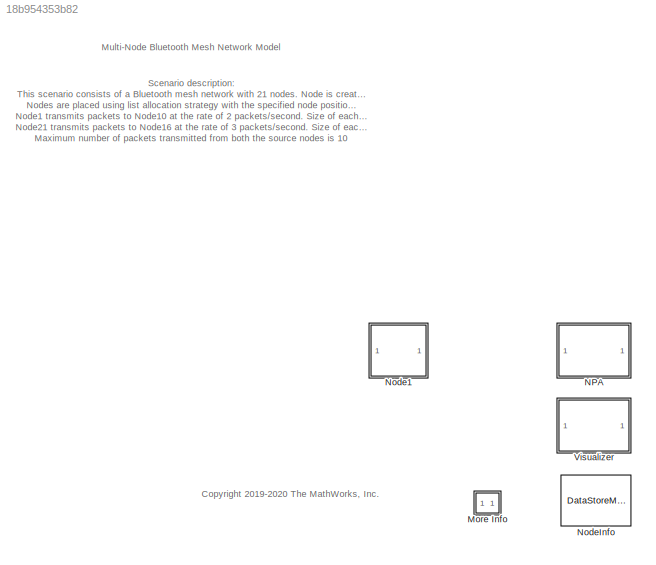
MODEL slx_18b954353b82
KIND model
CONFIG AbsTol = auto
CONFIG EnableMultiTasking = off
CONFIG FixedStep = auto
CONFIG InitFcn = load('bleMeshBusObjects.mat');\nload('bleMeshDESNodePositions.mat');\nModelName = bdroot;\nhelperBLEMeshAssignNodeIDs(ModelName);\nNumberOfNodes = numel(helperBLEMeshGetNodeNamesList(ModelName));\n% Statistics\nopcode = 0; % For creating the table\nhelperBLEMeshUpdateStatistics(opcode);\nmeshNetworkGraph = helperBLEMeshVisualizeNetwork();\nrng('default');
CONFIG MaxStep = inf
CONFIG MinStep = auto
CONFIG PostLoadFcn = load('bleMeshBusObjects.mat');\nload('bleMeshDESNodePositions.mat');\nModelName = bdroot;\nhelperBLEMeshAssignNodeIDs(ModelName);\nNumberOfNodes = numel(helperBLEMeshGetNodeNamesList(ModelName));\n% Statistics\nopcode = 0; % For creating the table\nhelperBLEMeshUpdateStatistics(opcode);\nmeshNetworkGraph = helperBLEMeshVisualizeNetwork();
CONFIG RelTol = 1e-3
CONFIG SampleTimeConstraint = Unconstrained
CONFIG SolverName = VariableStepDiscrete
CONFIG StartFcn = if enableVisualization == 1\nmeshNetworkGraph.createNetwork();\nend
CONFIG StartTime = 0.0
CONFIG StopFcn = % Sort statisticsAtEachNode table\nlist = statisticsAtEachNode.Properties.RowNames;\nnodeNum = cellfun(@(x)sscanf(x,'Node%d'), list);\n[~,sortIdx] = sort(nodeNum);\nstatisticsAtEachNode = statisticsAtEachNode(sortIdx, :);\n\n% Fill node statisticsAtEachNode in a cell array as input to visualization object\nnodeStatistics = cell(1, NumberOfNodes);\nfor idx = 1:NumberOfNodes\n    stats = {\n        'Node Type...<+1389ch>
CONFIG StopTime = 3
BLOCK [SubSystem] More Info
  OpenFcn = showExample('bluetooth/BLEMeshDiscreteEventSimulationExample')
  Ports = []
  RequestExecContextInheritance = off
BLOCK [SubSystem] NPA
  MaskHideContents = on
  Ports = []
  Priority = 100
  RequestExecContextInheritance = off
  Tag = a
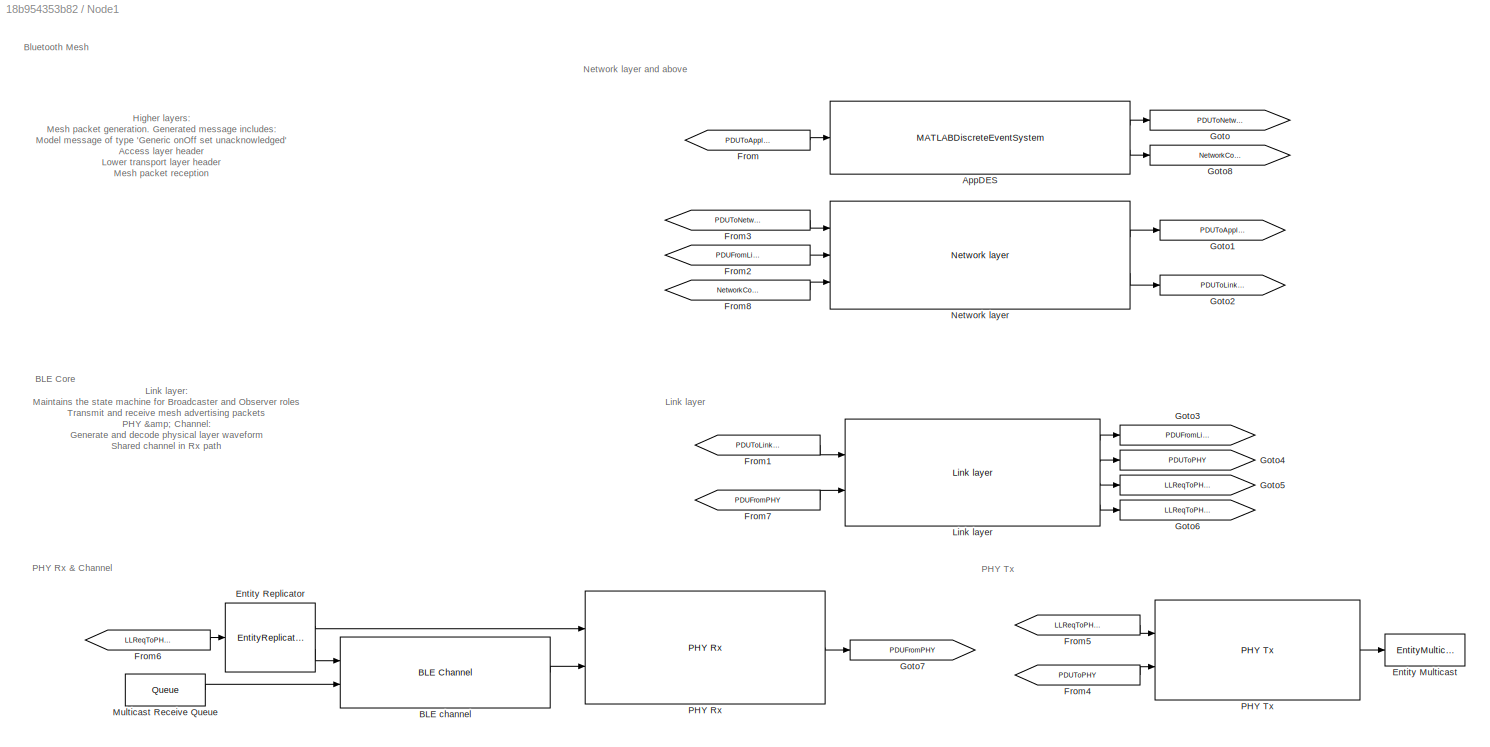
BLOCK [SubSystem] Node1
  Ports = []
  RequestExecContextInheritance = off
BLOCK [MATLABDiscreteEventSystem] Node1/AppDES
  ApplicationState = 0
  DestinationNode = 1
  InputPortMessageModes = m
  MaskDisplay = disp('AppDES');\nport_label('input',1,'transportPDUIn');\nport_label('output',1,'transportPDUOut');\nport_label('output',2,'networkConfig');
  MaskType = AppDES
  NodeID = 1
  OutputPortMessageModes = m,m
  Ports = [1, 2]
  SimulateUsing = Code generation
  SourceRate = 1
  System = AppDES
  TotalPackets = 1
BLOCK [Reference] Node1/BLE channel  REF=BLEMeshLib/BLE Channel
  Ports = [2, 1]
  SourceBlock = BLEMeshLib/BLE Channel
  SourceType = helperBLEChannelDES
BLOCK [EntityMulticast] Node1/Entity Multicast
  InputPortMessageModes = m
  MulticastTag = channel
BLOCK [EntityReplicator] Node1/Entity Replicator
  InputPortMap = u0
  InputPortMessageModes = m
  OutputPortMap = o0,o1
  OutputPortMessageModes = m,m
  Ports = [1, 2]
BLOCK [From] Node1/From
  GotoTag = PDUToApplication
BLOCK [From] Node1/From1
  GotoTag = PDUToLinkLayer
BLOCK [From] Node1/From2
  GotoTag = PDUFromLinkLayer
BLOCK [From] Node1/From3
  GotoTag = PDUToNetworkLayer
BLOCK [From] Node1/From4
  GotoTag = PDUToPHY
BLOCK [From] Node1/From5
  GotoTag = LLReqToPHYTx
BLOCK [From] Node1/From6
  GotoTag = LLReqToPHYRx
BLOCK [From] Node1/From7
  GotoTag = PDUFromPHY
BLOCK [From] Node1/From8
  GotoTag = NetworkConfig
BLOCK [Goto] Node1/Goto
  GotoTag = PDUToNetworkLayer
BLOCK [Goto] Node1/Goto1
  GotoTag = PDUToApplication
BLOCK [Goto] Node1/Goto2
  GotoTag = PDUToLinkLayer
BLOCK [Goto] Node1/Goto3
  GotoTag = PDUFromLinkLayer
BLOCK [Goto] Node1/Goto4
  GotoTag = PDUToPHY
BLOCK [Goto] Node1/Goto5
  GotoTag = LLReqToPHYTx
BLOCK [Goto] Node1/Goto6
  GotoTag = LLReqToPHYRx
BLOCK [Goto] Node1/Goto7
  GotoTag = PDUFromPHY
BLOCK [Goto] Node1/Goto8
  GotoTag = NetworkConfig
BLOCK [Reference] Node1/Link layer  REF=BLEMeshLib/Link layer
  Ports = [2, 4]
  SourceBlock = BLEMeshLib/Link layer
  SourceType = helperBLEMeshLinkLayerDES
BLOCK [Queue] Node1/Multicast Receive Queue
  EntityArrivalSource = Multicast
  MulticastTag = channel
  NameLocation = top
  OutputPortMap = o5
  OutputPortMessageModes = m
  Ports = [0, 1]
BLOCK [Reference] Node1/Network layer  REF=BLEMeshLib/Network layer
  Ports = [3, 2]
  SourceBlock = BLEMeshLib/Network layer
  SourceType = helperBLEMeshNetworkLayerDES
BLOCK [Reference] Node1/PHY Rx  REF=BLEMeshLib/PHY Rx
  Ports = [2, 1]
  SourceBlock = BLEMeshLib/PHY Rx
  SourceType = helperBLEPHYRxDES
BLOCK [Reference] Node1/PHY Tx  REF=BLEMeshLib/PHY Tx
  Ports = [2, 1]
  SourceBlock = BLEMeshLib/PHY Tx
  SourceType = helperBLEPHYTxDES
BLOCK [DataStoreMemory] NodeInfo
  DataStoreName = NodeInfo
  Dimensions = NumberOfNodes
  OutDataTypeStr = Bus: NodeInfo
  ReadBeforeWriteMsg = warning
  ShowAdditionalParam = off
  WriteAfterReadMsg = warning
  WriteAfterWriteMsg = warning
BLOCK [SubSystem] Visualizer
  MaskHideContents = on
  Ports = []
  Priority = 100
  RequestExecContextInheritance = off
  Tag = a
ANNOTATION (root): Scenario description: This scenario consists of a Bluetooth mesh network with 21 nodes. Node is created as a masked sub-system Nodes are placed using list allocation strategy with the specified node positions in node position allocator (NPA) Node1 transmits packets to Node10 at the rate of 2 packets/second. Size of each packet is 34 bytes. Node21 transmits packets to Node16 at the rate of 3 packet...<+653ch>
ANNOTATION (root): Multi-Node Bluetooth Mesh Network Model
ANNOTATION (root): <copyright redacted>
ANNOTATION Node1: Higher layers: Mesh packet generation. Generated message includes: Model message of type 'Generic onOff set unacknowledged' Access layer header Lower transport layer header Mesh packet reception Network layer: Generate and decode network PDU Transmit network PDU using advertising bearer network interface Relays network PDU using advertising bearer network interface Send decoded information to lowe...<+17ch>
ANNOTATION Node1: Link layer: Maintains the state machine for Broadcaster and Observer roles Transmit and receive mesh advertising packets PHY & Channel: Generate and decode physical layer waveform Shared channel in Rx path Channel impairments Free-space path loss Range propagation loss Interference
ANNOTATION Node1: BLE Core
ANNOTATION Node1: Bluetooth Mesh
ANNOTATION Node1: Link layer
ANNOTATION Node1: Network layer and above
ANNOTATION Node1: PHY Rx & Channel
ANNOTATION Node1: PHY Tx
LINE Node1/AppDES:1 -> Node1/Goto:1
LINE Node1/AppDES:2 -> Node1/Goto8:1
LINE Node1/BLE channel:1 -> Node1/PHY Rx:2
LINE Node1/Entity Replicator:1 -> Node1/PHY Rx:1
LINE Node1/Entity Replicator:2 -> Node1/BLE channel:1
LINE Node1/From1:1 -> Node1/Link layer:1
LINE Node1/From2:1 -> Node1/Network layer:2
LINE Node1/From3:1 -> Node1/Network layer:1
LINE Node1/From4:1 -> Node1/PHY Tx:2
LINE Node1/From5:1 -> Node1/PHY Tx:1
LINE Node1/From6:1 -> Node1/Entity Replicator:1
LINE Node1/From7:1 -> Node1/Link layer:2
LINE Node1/From8:1 -> Node1/Network layer:3
LINE Node1/From:1 -> Node1/AppDES:1
LINE Node1/Link layer:1 -> Node1/Goto3:1
LINE Node1/Link layer:2 -> Node1/Goto4:1
LINE Node1/Link layer:3 -> Node1/Goto5:1
LINE Node1/Link layer:4 -> Node1/Goto6:1
LINE Node1/Multicast Receive Queue:1 -> Node1/BLE channel:2
LINE Node1/Network layer:1 -> Node1/Goto1:1
LINE Node1/Network layer:2 -> Node1/Goto2:1
LINE Node1/PHY Rx:1 -> Node1/Goto7:1
LINE Node1/PHY Tx:1 -> Node1/Entity Multicast:1
